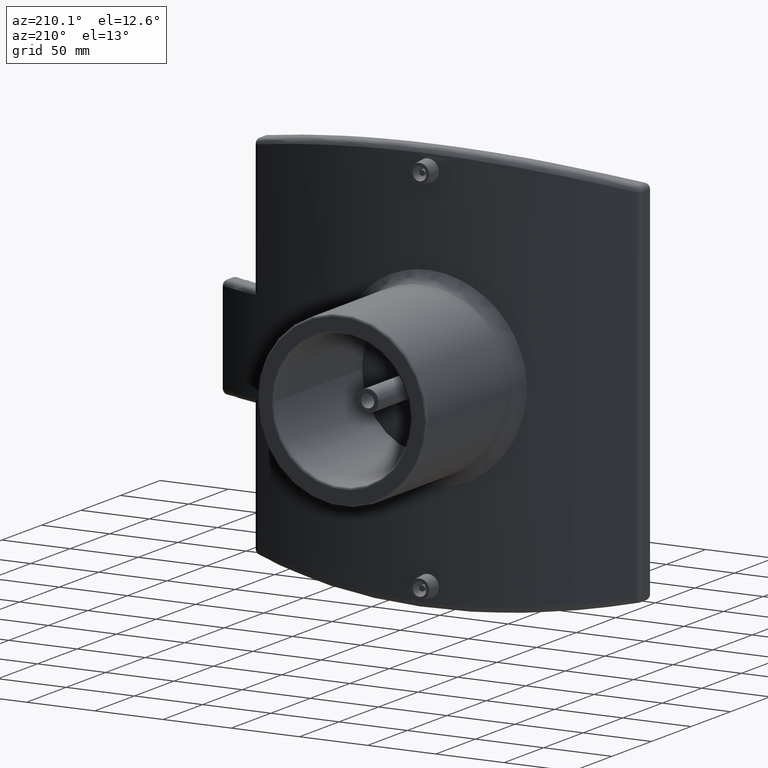
[diagram: clean part render]
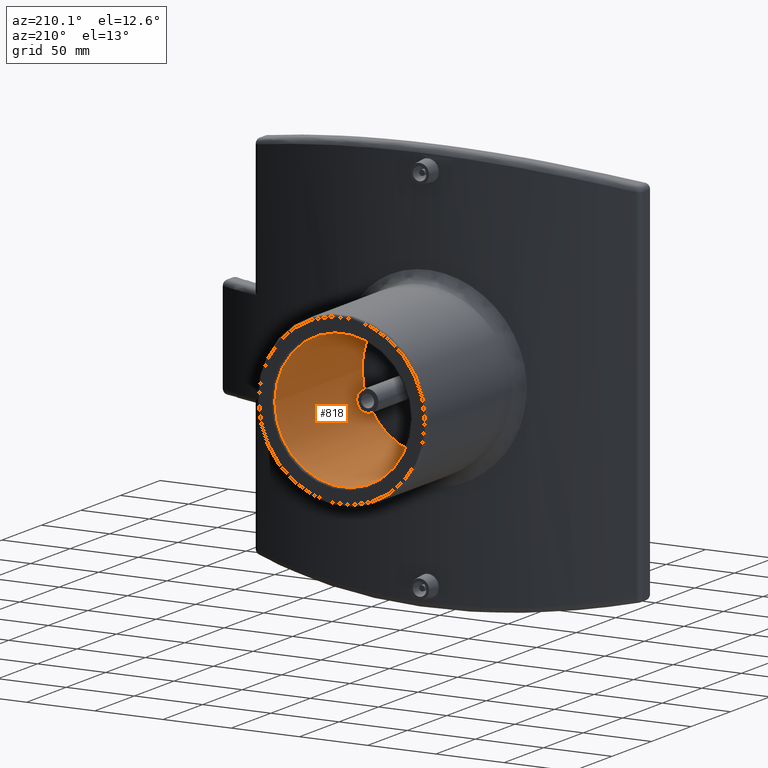
[diagram: same view with one face highlighted and labeled with its STEP entity id]
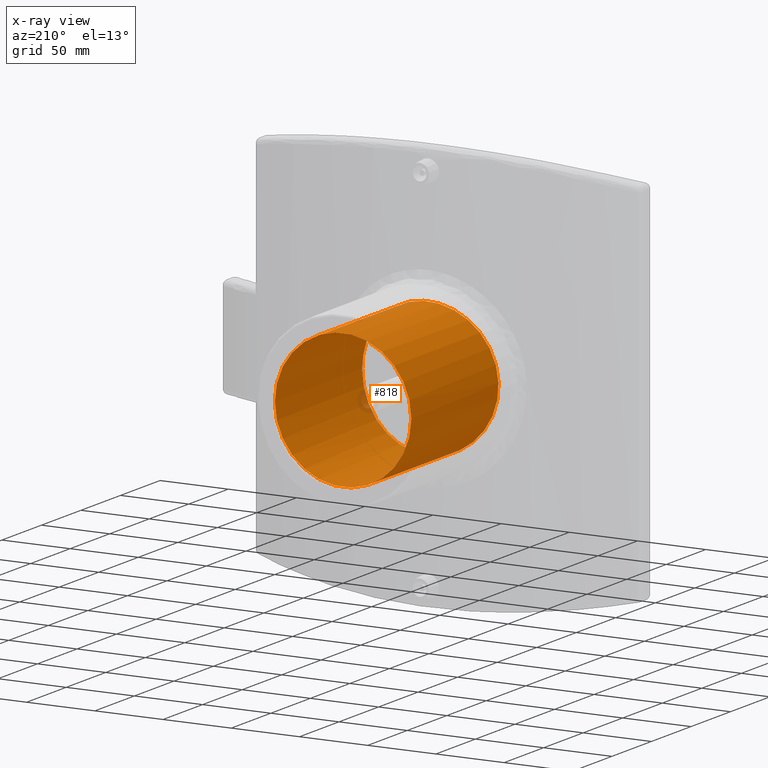
[diagram: x-ray of the same camera — body ghosted, the highlighted face saturated]
A machine part, auxiliary view. The second image highlights one B-rep face of the part: STEP entity #818.
The next image is the same camera in x-ray: the body ghosted, the highlighted face saturated — about 2% of this face is hidden behind the body in this view.
In plain terms, the highlighted cylindrical surface (bore or boss wall) has radius 50 mm, axis along (0, -1, 0).
Its self-contained STEP definition (entity closure, byte-faithful):
#94=B_SPLINE_CURVE_WITH_KNOTS('',3,(#1299,#1300,#1301,#1302,#1303,#1304,
#1305,#1306,#1307,#1308,#1309,#1310,#1311,#1312,#1313,#1314,#1315,#1316,
#1317,#1318,#1319,#1320,#1321,#1322,#1323,#1324,#1325,#1326,#1327,#1328,
#1329,#1330,#1331,#1332,#1333,#1334,#1335,#1336,#1337,#1338,#1339,#1340,
#1341,#1342,#1343,#1344,#1345,#1346,#1347,#1348,#1349,#1350,#1351,#1352,
#1353,#1354,#1355,#1356,#1357,#1358,#1359,#1360,#1361,#1362,#1363,#1364),
 .UNSPECIFIED.,.T.,.F.,(4,2,2,2,2,2,2,2,2,2,2,2,2,2,2,2,2,2,2,2,2,2,2,2,
2,2,2,2,2,2,2,2,4),(0.,0.942703867265166,1.88540773453033,2.8281116017955,
3.77081546906066,4.7135125463613,5.65620962366194,6.59890670096258,7.54160377826321,
8.48430085556385,9.42699793286449,10.3696950101651,11.3123920874658,12.2550959547309,
13.1977998219961,14.1405036892613,15.0832075565264,16.0259114237916,16.9686152910568,
17.9113191583219,18.8540230255871,19.7967201028877,20.7394171801884,21.682114257489,
22.6248113347896,23.5675084120903,24.5102054893909,25.4529025666916,26.3955996439922,
27.3383035112574,28.2810073785225,29.2237112457877,30.1664151130529),
 .UNSPECIFIED.);
#115=CYLINDRICAL_SURFACE('',#889,50.);
#158=FACE_BOUND('',#250,.T.);
#181=FACE_OUTER_BOUND('',#249,.T.);
#249=EDGE_LOOP('',(#586));
#250=EDGE_LOOP('',(#587));
#334=CIRCLE('',#885,50.);
#397=VERTEX_POINT('',#1290);
#400=VERTEX_POINT('',#1298);
#468=EDGE_CURVE('',#397,#397,#334,.T.);
#471=EDGE_CURVE('',#400,#400,#94,.T.);
#586=ORIENTED_EDGE('',*,*,#471,.F.);
#587=ORIENTED_EDGE('',*,*,#468,.F.);
#818=ADVANCED_FACE('',(#181,#158),#115,.F.);
#885=AXIS2_PLACEMENT_3D('',#1291,#1012,#1013);
#889=AXIS2_PLACEMENT_3D('',#1297,#1020,#1021);
#1012=DIRECTION('center_axis',(0.,-1.,0.));
#1013=DIRECTION('ref_axis',(1.,0.,0.));
#1020=DIRECTION('center_axis',(0.,-1.,0.));
#1021=DIRECTION('ref_axis',(1.,0.,0.));
#1290=CARTESIAN_POINT('',(-50.,522.4,-6.12323399573677E-15));
#1291=CARTESIAN_POINT('Origin',(0.,522.4,0.));
#1297=CARTESIAN_POINT('Origin',(0.,524.,0.));
#1298=CARTESIAN_POINT('',(50.,411.97694110229,-5.55111512312578E-16));
#1299=CARTESIAN_POINT('Ctrl Pts',(50.,411.97694110229,1.66533453693773E-15));
#1300=CARTESIAN_POINT('Ctrl Pts',(50.,411.97694110229,-3.14234622421722));
#1301=CARTESIAN_POINT('Ctrl Pts',(49.6989967598022,412.013854897876,-6.39103965193761));
#1302=CARTESIAN_POINT('Ctrl Pts',(48.4321600699875,412.164691328151,-12.8515188901906));
#1303=CARTESIAN_POINT('Ctrl Pts',(47.4666083543827,412.278510318542,-16.0633623622287));
#1304=CARTESIAN_POINT('Ctrl Pts',(44.9143223251842,412.564361776972,-22.2219304638303));
#1305=CARTESIAN_POINT('Ctrl Pts',(43.325556543395,412.736354266937,-25.1736181256052));
#1306=CARTESIAN_POINT('Ctrl Pts',(39.6551455014609,413.105157821274,-30.6314272389748));
#1307=CARTESIAN_POINT('Ctrl Pts',(37.5732632645161,413.301590899029,-33.1374148541387));
#1308=CARTESIAN_POINT('Ctrl Pts',(33.137430829067,413.680874296458,-37.5732472895878));
#1309=CARTESIAN_POINT('Ctrl Pts',(30.6314505824864,413.877028820872,-39.6551278027199));
#1310=CARTESIAN_POINT('Ctrl Pts',(25.1736366402689,414.244817431273,-43.325546092234));
#1311=CARTESIAN_POINT('Ctrl Pts',(22.2219367501468,414.416080537251,-44.9143199929308));
#1312=CARTESIAN_POINT('Ctrl Pts',(16.0633451405415,414.700459637018,-47.4666152185648));
#1313=CARTESIAN_POINT('Ctrl Pts',(12.851490614846,414.813547581857,-48.4321676433897));
#1314=CARTESIAN_POINT('Ctrl Pts',(6.39100856369283,414.963365946932,-49.6990008269997));
#1315=CARTESIAN_POINT('Ctrl Pts',(3.14232359100213,415.,-50.));
#1316=CARTESIAN_POINT('Ctrl Pts',(-3.14232359100212,415.,-50.));
#1317=CARTESIAN_POINT('Ctrl Pts',(-6.39100856369283,414.963365946932,-49.6990008269997));
#1318=CARTESIAN_POINT('Ctrl Pts',(-12.8514906148459,414.813547581857,-48.4321676433897));
#1319=CARTESIAN_POINT('Ctrl Pts',(-16.0633451405415,414.700459637018,-47.4666152185648));
#1320=CARTESIAN_POINT('Ctrl Pts',(-22.2219367501468,414.416080537251,-44.9143199929308));
#1321=CARTESIAN_POINT('Ctrl Pts',(-25.1736366402689,414.244817431273,-43.325546092234));
#1322=CARTESIAN_POINT('Ctrl Pts',(-30.6314505824863,413.877028820872,-39.6551278027199));
#1323=CARTESIAN_POINT('Ctrl Pts',(-33.137430829067,413.680874296458,-37.5732472895878));
#1324=CARTESIAN_POINT('Ctrl Pts',(-37.5732632645161,413.301590899029,-33.1374148541387));
#1325=CARTESIAN_POINT('Ctrl Pts',(-39.655145501461,413.105157821274,-30.6314272389748));
#1326=CARTESIAN_POINT('Ctrl Pts',(-43.325556543395,412.736354266937,-25.1736181256053));
#1327=CARTESIAN_POINT('Ctrl Pts',(-44.9143223251842,412.564361776972,-22.2219304638303));
#1328=CARTESIAN_POINT('Ctrl Pts',(-47.4666083543827,412.278510318542,-16.0633623622287));
#1329=CARTESIAN_POINT('Ctrl Pts',(-48.4321600699875,412.164691328151,-12.8515188901906));
#1330=CARTESIAN_POINT('Ctrl Pts',(-49.6989967598022,412.013854897876,-6.39103965193762));
#1331=CARTESIAN_POINT('Ctrl Pts',(-50.,411.97694110229,-3.14234622421723));
#1332=CARTESIAN_POINT('Ctrl Pts',(-50.,411.97694110229,3.14234622421723));
#1333=CARTESIAN_POINT('Ctrl Pts',(-49.6989967598022,412.013854897876,6.39103965193762));
#1334=CARTESIAN_POINT('Ctrl Pts',(-48.4321600699875,412.164691328151,12.8515188901906));
#1335=CARTESIAN_POINT('Ctrl Pts',(-47.4666083543827,412.278510318542,16.0633623622287));
#1336=CARTESIAN_POINT('Ctrl Pts',(-44.9143223251842,412.564361776972,22.2219304638303));
#1337=CARTESIAN_POINT('Ctrl Pts',(-43.325556543395,412.736354266937,25.1736181256052));
#1338=CARTESIAN_POINT('Ctrl Pts',(-39.6551455014609,413.105157821274,30.6314272389748));
#1339=CARTESIAN_POINT('Ctrl Pts',(-37.5732632645161,413.301590899029,33.1374148541387));
#1340=CARTESIAN_POINT('Ctrl Pts',(-33.137430829067,413.680874296458,37.5732472895878));
#1341=CARTESIAN_POINT('Ctrl Pts',(-30.6314505824864,413.877028820872,39.6551278027198));
#1342=CARTESIAN_POINT('Ctrl Pts',(-25.173636640269,414.244817431273,43.325546092234));
#1343=CARTESIAN_POINT('Ctrl Pts',(-22.2219367501468,414.416080537251,44.9143199929308));
#1344=CARTESIAN_POINT('Ctrl Pts',(-16.0633451405415,414.700459637018,47.4666152185648));
#1345=CARTESIAN_POINT('Ctrl Pts',(-12.8514906148459,414.813547581857,48.4321676433897));
#1346=CARTESIAN_POINT('Ctrl Pts',(-6.39100856369283,414.963365946932,49.6990008269997));
#1347=CARTESIAN_POINT('Ctrl Pts',(-3.14232359100213,415.,50.));
#1348=CARTESIAN_POINT('Ctrl Pts',(3.14232359100211,415.,50.));
#1349=CARTESIAN_POINT('Ctrl Pts',(6.39100856369281,414.963365946932,49.6990008269997));
#1350=CARTESIAN_POINT('Ctrl Pts',(12.8514906148459,414.813547581857,48.4321676433897));
#1351=CARTESIAN_POINT('Ctrl Pts',(16.0633451405415,414.700459637018,47.4666152185648));
#1352=CARTESIAN_POINT('Ctrl Pts',(22.2219367501468,414.416080537251,44.9143199929308));
#1353=CARTESIAN_POINT('Ctrl Pts',(25.1736366402689,414.244817431273,43.325546092234));
#1354=CARTESIAN_POINT('Ctrl Pts',(30.6314505824864,413.877028820872,39.6551278027198));
#1355=CARTESIAN_POINT('Ctrl Pts',(33.137430829067,413.680874296458,37.5732472895878));
#1356=CARTESIAN_POINT('Ctrl Pts',(37.5732632645161,413.301590899029,33.1374148541387));
#1357=CARTESIAN_POINT('Ctrl Pts',(39.6551455014609,413.105157821274,30.6314272389748));
#1358=CARTESIAN_POINT('Ctrl Pts',(43.325556543395,412.736354266937,25.1736181256053));
#1359=CARTESIAN_POINT('Ctrl Pts',(44.9143223251842,412.564361776972,22.2219304638303));
#1360=CARTESIAN_POINT('Ctrl Pts',(47.4666083543827,412.278510318542,16.0633623622287));
#1361=CARTESIAN_POINT('Ctrl Pts',(48.4321600699875,412.164691328151,12.8515188901906));
#1362=CARTESIAN_POINT('Ctrl Pts',(49.6989967598022,412.013854897876,6.39103965193763));
#1363=CARTESIAN_POINT('Ctrl Pts',(50.,411.97694110229,3.14234622421723));
#1364=CARTESIAN_POINT('Ctrl Pts',(50.,411.97694110229,-1.66533453693773E-15));